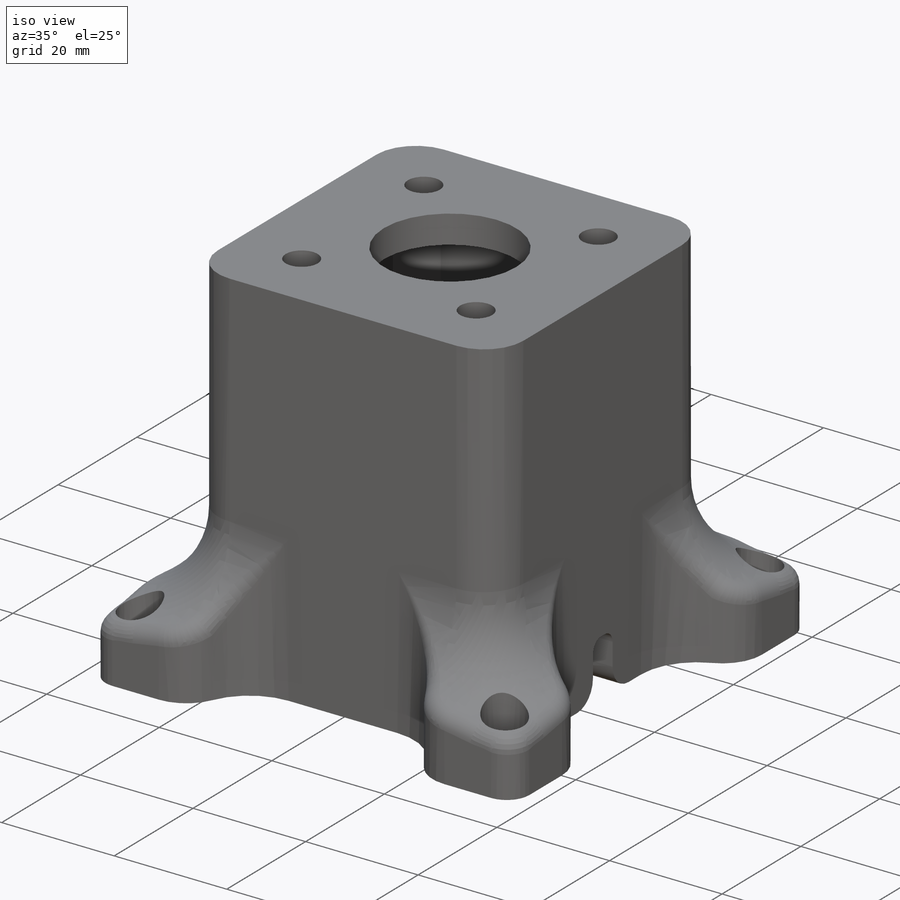
[diagram: iso view]
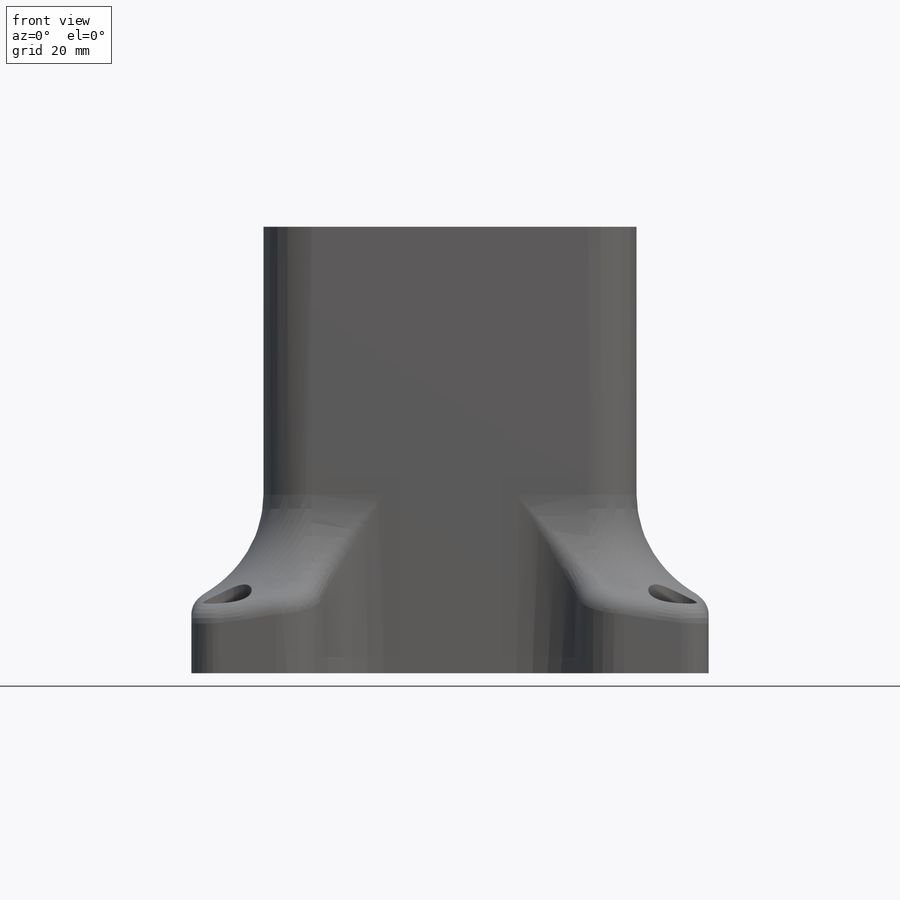
[diagram: front view]
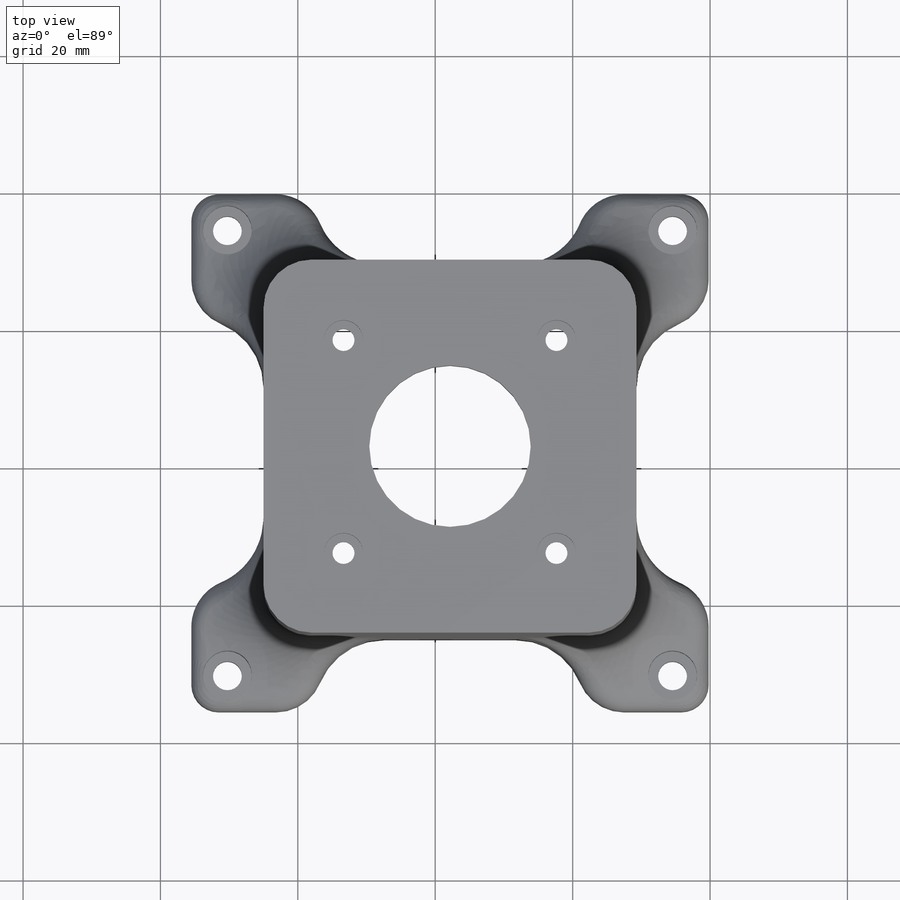
[diagram: top view]
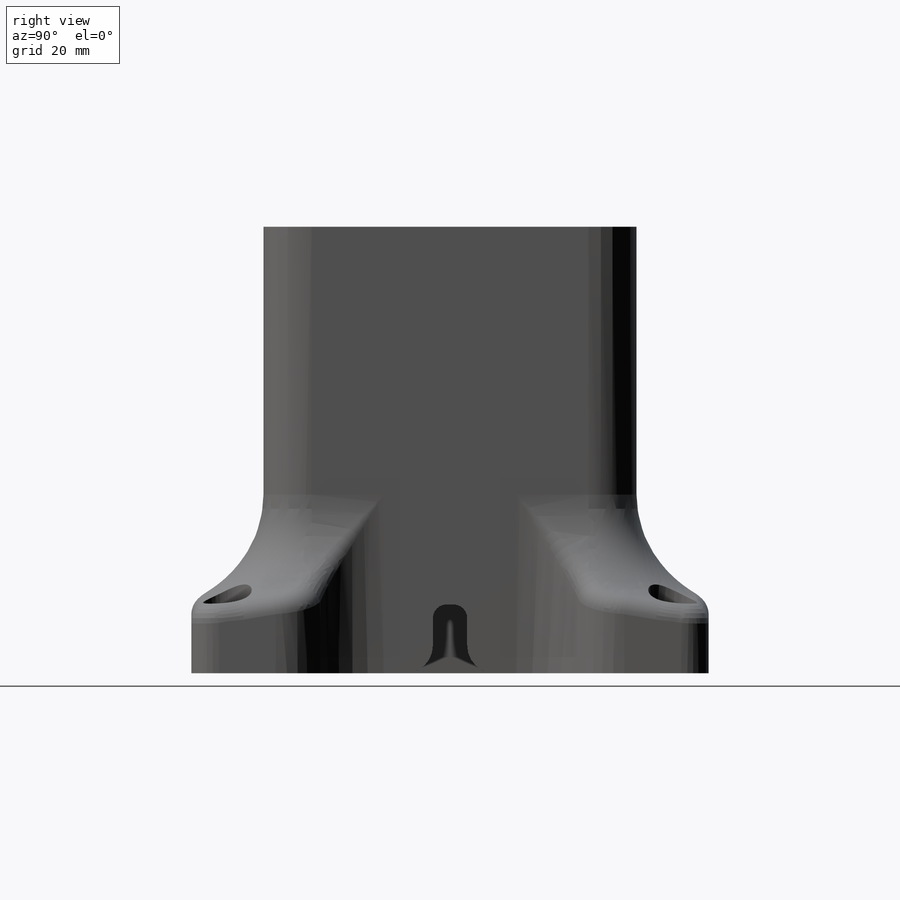
[diagram: right view]
SOLIDWORKS PART (.sldprt)
format: sldprt  version: not decoded by parser v0  size: 721,408 bytes
history: native  units: mm
features: fillet x8, sketch x7, plane x4, cut_extrude x4, extrude x3, material x1, chamfer x1, mirror x1 (+9 scaffold rows collapsed)
feature tree (38):
  scaffold x9  (default folders/planes/origin — collapsed)
  material  "Material <sin especificar>"
  plane  "Alzado"
  plane  "Planta"
  plane  "Vista lateral"
  sketch  "Croquis1"  dims[D1=44.3mm D2=44.3mm D3=5.0mm]
  extrude  "Saliente-Extruir1"  Depth=60mm
  sketch  "Croquis2"
  extrude  "Saliente-Extruir2"  Depth=5mm
  sketch  "Croquis3"  dims[D2=3.2mm D3=23.5mm D1=31.0mm]
  cut_extrude  "Cortar-Extruir1"  Depth=15mm
  chamfer  "Chaflán1"  Distance=5mm Angle=45deg
  sketch  "Croquis4"  dims[D1=4.2mm D2=18.0mm]
  extrude  "Saliente-Extruir4"  Depth=10mm
  plane  "Plano1"
  mirror  "Simetría1"
  sketch  "Croquis6"  dims[D1=7.1mm]
  cut_extrude  "Cortar-Extruir3"  Depth=4.3mm
  fillet  "Redondeo2"  Radius=4mm
  fillet  "Redondeo3"  Radius=10mm
  fillet  "Redondeo5"  Radius=7mm
  fillet  "Redondeo6"  Radius=7mm
  sketch  "Croquis7"  dims[D1=10.0mm D2=5.0mm]
  cut_extrude  "Cortar-Extruir4"  Depth=14.3mm
  fillet  "Redondeo7"  Radius=4mm
  fillet  "Redondeo8"  Radius=2mm
  sketch  "Croquis8"  dims[D1=5.7mm]
  cut_extrude  "Cortar-Extruir5"  Depth=3mm
  fillet  "Redondeo9"  Radius=16mm
  fillet  "Redondeo10"  Radius=3mm
decode coverage: 22 of 24 modeling features carry decoded parameters
note: suppression state not decoded; provenance and decode notes live in map.json
